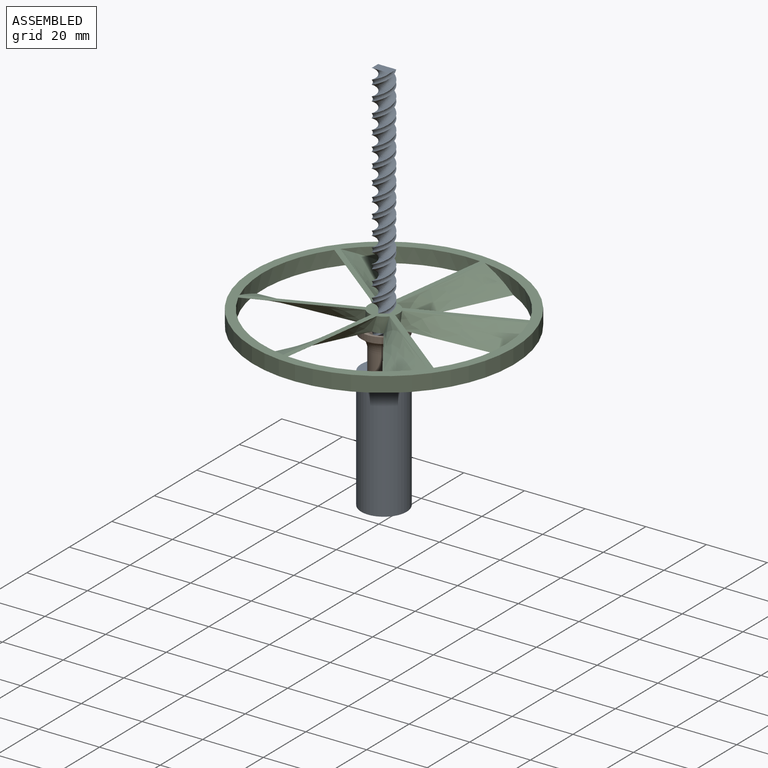
[diagram: assembled view]
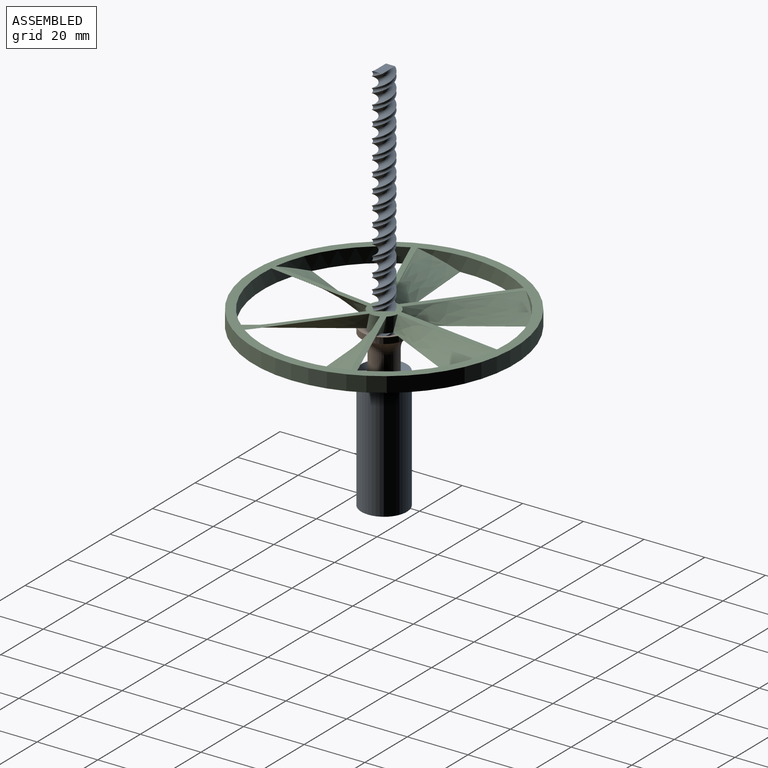
[diagram: assembled view, second angle]
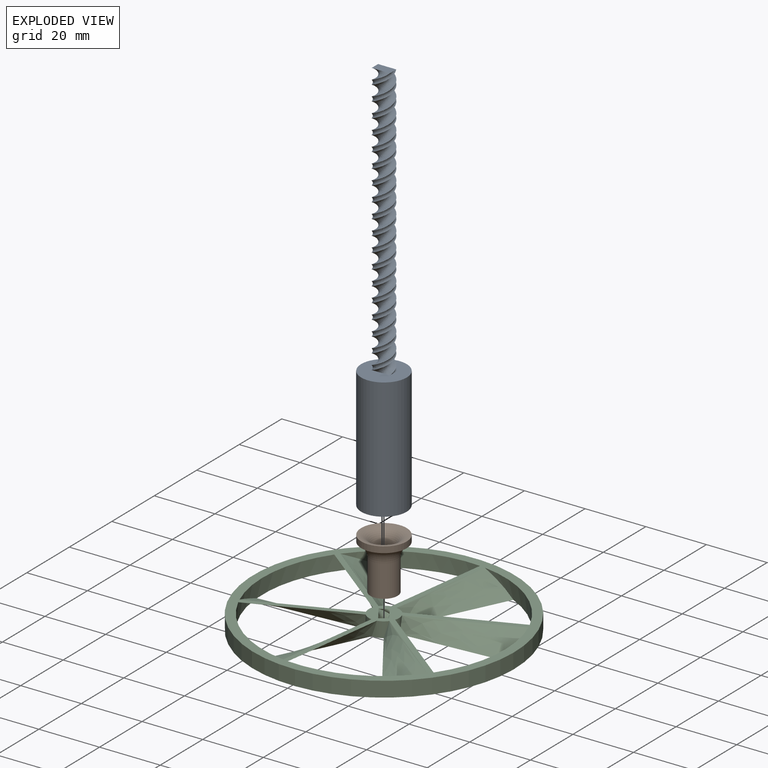
[diagram: exploded view]
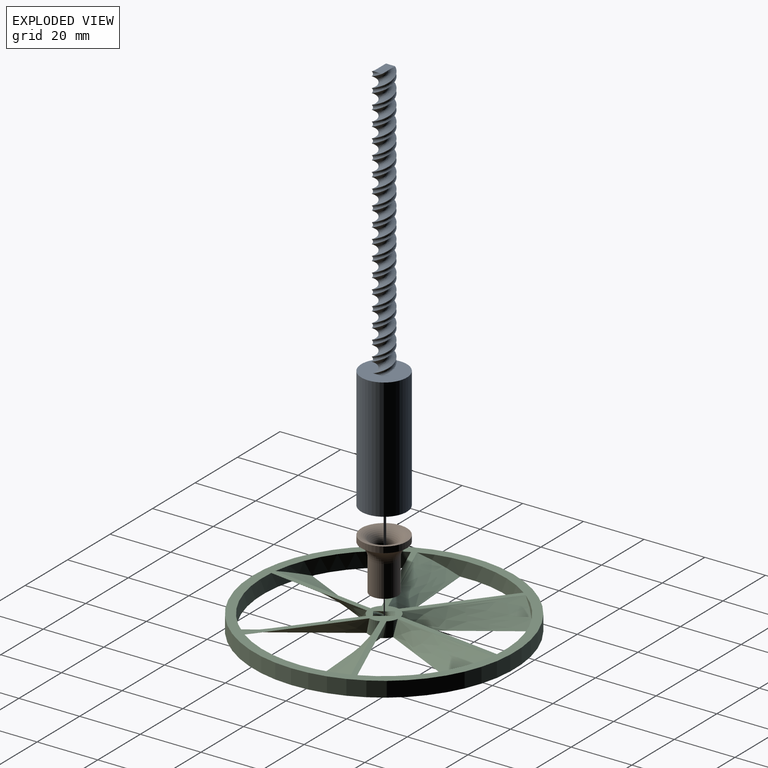
[diagram: exploded view, second angle]
ASSEMBLY  parts=3 mates=2
PART A: 8 faces, bbox 15x15x130 mm
  f0: bspline ~90x7.24mm, area 306.9mm2, adj f1,f3,f4,f5
  f1: bspline ~90x7.24mm, area 777.5mm2, adj f0,f2,f4,f5
  f2: bspline ~90x7.24mm, area 306.9mm2, adj f1,f3,f4,f5
  f3: bspline ~90x7.24mm, area 777.5mm2, adj f0,f2,f4,f5
  f4: plane 6x3mm, normal (0,0,1), area 18mm2, adj f0,f1,f2,f3
  f5: plane 15x15mm, normal (0,0,1), area 158.7mm2, adj f0,f1,f2,f3,f7
  f6: plane 15x15mm, normal (0,0,-1), area 176.7mm2, adj f7
  f7: cylinder r=7.5mm len=40mm, axis (0,0,1), area 1885mm2, adj f5,f6
PART B: 6 faces, bbox 20.6x20.6x17 mm
  f0: cylinder r=3.5mm len=13mm, axis (0,0,-1), area 285.9mm2, adj f2,f4
  f1: cylinder r=4.5mm len=10.42mm, axis (0,0,-1), area 294.5mm2, adj f2,f5
  f2: plane 9x9mm, normal (0,0,-1), area 25.1mm2, adj f0,f1
  f3: cylinder r=7.5mm len=15mm, axis (0,0,-1), area 94.2mm2, adj f4,f5
  f4: torus R=7.5mm, axis (0,0,1), area 195.6mm2, adj f0,f3
  f5: torus R=9.5mm, axis (0,0,1), area 202mm2, adj f1,f3
PART C: 31 faces, bbox 86x86x6.3 mm
  f0: plane 86x86mm, normal (0,0,1), area 1207.5mm2, adj f2,f3,f4,f5,f6,f7,f8,f9
  f1: plane 86.02x86.02mm, normal (0,0,-1), area 1207.5mm2, adj f2,f3,f4,f5,f6,f7,f8,f9
  f2: bspline ~33.42x30.73mm, area 310.7mm2, adj f0,f1,f19,f25
  f3: bspline ~34.52x19.2mm, area 311.9mm2, adj f0,f1,f19,f25
  f4: bspline ~38.15x15.31mm, area 310.7mm2, adj f0,f1,f18,f24
  f5: bspline ~34.51x30.91mm, area 311.9mm2, adj f0,f1,f18,f24
  f6: bspline ~34.79x18.96mm, area 310.7mm2, adj f0,f1,f17,f23
  f7: bspline ~39.7x15.16mm, area 311.8mm2, adj f0,f1,f17,f23
  f8: bspline ~33.42x30.73mm, area 310.7mm2, adj f0,f1,f16,f22
  f9: bspline ~34.52x19.2mm, area 311.8mm2, adj f0,f1,f16,f22
  f10: bspline ~38.15x15.31mm, area 310.7mm2, adj f0,f1,f15,f21
  f11: bspline ~34.51x30.91mm, area 311.9mm2, adj f0,f1,f15,f21
  f12: bspline ~34.79x18.96mm, area 310.7mm2, adj f0,f1,f14,f20
  f13: bspline ~39.7x15.16mm, area 311.8mm2, adj f0,f1,f14,f20
  f14: cylinder r=5mm len=5mm, axis (0,0,1), area 17.3mm2, adj f0,f1,f12,f13
  f15: cylinder r=5mm len=5mm, axis (0,0,1), area 17.3mm2, adj f0,f1,f10,f11
  f16: cylinder r=5mm len=5mm, axis (0,0,1), area 17.3mm2, adj f0,f1,f8,f9
  f17: cylinder r=5mm len=5mm, axis (0,0,1), area 17.3mm2, adj f0,f1,f6,f7
  f18: cylinder r=5mm len=5mm, axis (0,0,1), area 17.3mm2, adj f0,f1,f4,f5
  f19: cylinder r=5mm len=5mm, axis (0,0,1), area 17.3mm2, adj f0,f1,f2,f3
  f20: cylinder r=40mm len=37.39mm, axis (0,0,-1), area 200.9mm2, adj f0,f1,f12,f13
  f21: cylinder r=40mm len=46.09mm, axis (0,0,-1), area 200.9mm2, adj f0,f1,f10,f11
  f22: cylinder r=40mm len=48.2mm, axis (0,0,-1), area 200.9mm2, adj f0,f1,f8,f9
  f23: cylinder r=40mm len=37.39mm, axis (0,0,-1), area 200.9mm2, adj f0,f1,f6,f7
  f24: cylinder r=40mm len=46.09mm, axis (0,0,-1), area 200.9mm2, adj f0,f1,f4,f5
  f25: cylinder r=40mm len=48.2mm, axis (0,0,-1), area 200.9mm2, adj f0,f1,f2,f3
  f26: cylinder r=43mm len=86mm, axis (0,0,-1), area 1350.9mm2, adj f0,f1
  f27: bspline ~7.24x5.12mm, area 17mm2, adj f0,f1,f28,f30
  f28: bspline ~7.24x6.62mm, area 43.1mm2, adj f0,f1,f27,f29
  f29: bspline ~7.24x5.12mm, area 17mm2, adj f0,f1,f28,f30
  f30: bspline ~7.24x6.62mm, area 43.1mm2, adj f0,f1,f27,f29
PLACE A t=(8.65,4.42,-6.06)mm fixed
PLACE B t=(8.65,4.42,-9.61)mm
PLACE C rot(axis=(-0.47,-0.88,0),180deg) t=(8.65,4.42,12.39)mm
MATE cylindrical C.f26 <-> A.f7  axis (0,0,-1) through (8.65,4.42,7.39)mm
MATE slider B.f3 <-> A.f7  axis (0,0,1) through (8.65,4.42,7.39)mm
